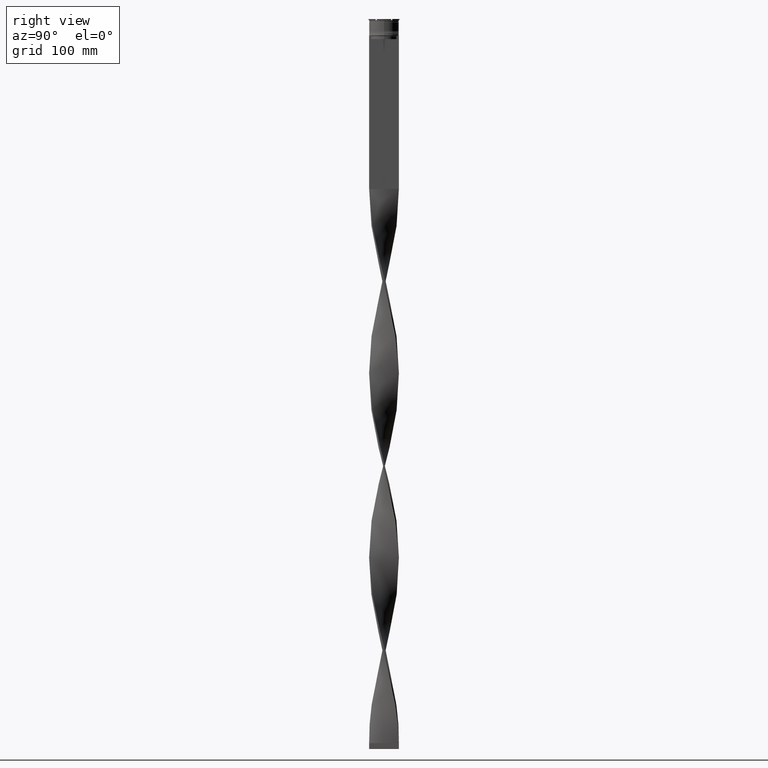
[diagram: clean part render]
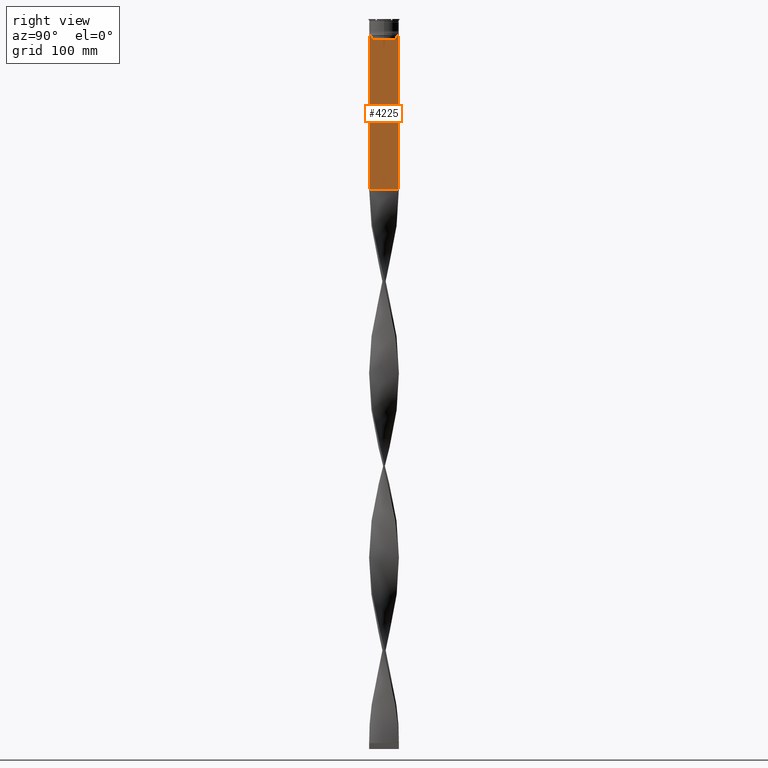
[diagram: same view with one face highlighted and labeled with its STEP entity id]
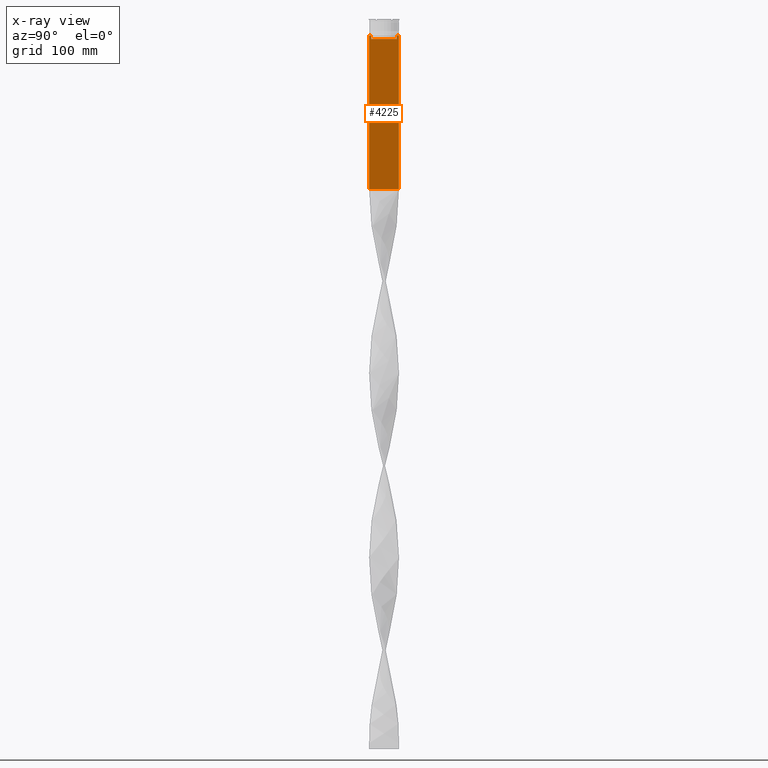
[diagram: x-ray of the same camera — body ghosted, the highlighted face saturated]
A machine part, right view. The second image highlights one B-rep face of the part: STEP entity #4225.
The next image is the same camera in x-ray: the body ghosted, the highlighted face saturated — about 0% of this face is hidden behind the body in this view.
In plain terms, the highlighted planar face has unit normal (-1, 0, 0).
Its self-contained STEP definition (entity closure, byte-faithful):
#17 = CARTESIAN_POINT ( 'NONE',  ( 0.7500000000000002220, -12.50000000000000000, -14.00000000000000178 ) ) ;
#27 = CARTESIAN_POINT ( 'NONE',  ( 0.7500000000000002220, -11.04122051801870441, -14.33334204001847567 ) ) ;
#52 = EDGE_CURVE ( 'NONE', #1727, #3552, #1667, .T. ) ;
#84 = CARTESIAN_POINT ( 'NONE',  ( 0.7500000000000002220, 10.90000000000000213, -17.00000000000000000 ) ) ;
#118 = VERTEX_POINT ( 'NONE', #4719 ) ;
#175 = LINE ( 'NONE', #2805, #4119 ) ;
#238 = B_SPLINE_CURVE_WITH_KNOTS ( 'NONE', 3,
 ( #838, #474, #2354, #884 ),
 .UNSPECIFIED., .F., .F.,
 ( 4, 4 ),
 ( 0.01936090553552769281, 0.02006881572333104116 ),
 .UNSPECIFIED. ) ;
#404 = EDGE_CURVE ( 'NONE', #500, #811, #3399, .T. ) ;
#414 = LINE ( 'NONE', #4509, #2696 ) ;
#421 = CARTESIAN_POINT ( 'NONE',  ( 0.7500000000000002220, -11.37530219378809093, -14.00000000000000178 ) ) ;
#430 = VERTEX_POINT ( 'NONE', #3799 ) ;
#453 = EDGE_CURVE ( 'NONE', #118, #4021, #741, .T. ) ;
#474 = CARTESIAN_POINT ( 'NONE',  ( 0.7500000000000002220, 11.20826531587977648, -14.16667499681701514 ) ) ;
#500 = VERTEX_POINT ( 'NONE', #421 ) ;
#506 = CARTESIAN_POINT ( 'NONE',  ( 0.7500000000000002220, -10.87416663473574197, -14.50000000000000000 ) ) ;
#533 = PLANE ( 'NONE',  #2798 ) ;
#585 = FACE_OUTER_BOUND ( 'NONE', #2381, .T. ) ;
#646 = ORIENTED_EDGE ( 'NONE', *, *, #4085, .T. ) ;
#741 = LINE ( 'NONE', #3755, #1763 ) ;
#811 = VERTEX_POINT ( 'NONE', #2816 ) ;
#838 = CARTESIAN_POINT ( 'NONE',  ( 0.7500000000000002220, 11.37530219378809093, -14.00000000000000178 ) ) ;
#884 = CARTESIAN_POINT ( 'NONE',  ( 0.7500000000000002220, 10.87416663473574197, -14.50000000000000000 ) ) ;
#998 = ORIENTED_EDGE ( 'NONE', *, *, #52, .T. ) ;
#1108 = EDGE_CURVE ( 'NONE', #811, #1637, #414, .T. ) ;
#1131 = EDGE_CURVE ( 'NONE', #3597, #1727, #1814, .T. ) ;
#1166 = DIRECTION ( 'NONE',  ( 0.000000000000000000, -1.000000000000000000, 0.000000000000000000 ) ) ;
#1202 = EDGE_CURVE ( 'NONE', #4261, #3498, #175, .T. ) ;
#1340 = B_SPLINE_CURVE_WITH_KNOTS ( 'NONE', 3,
 ( #2270, #27, #2250, #1527 ),
 .UNSPECIFIED., .F., .F.,
 ( 4, 4 ),
 ( 0.05009718908159448147, 0.05081156920313959630 ),
 .UNSPECIFIED. ) ;
#1403 = CARTESIAN_POINT ( 'NONE',  ( 0.7500000000000002220, -12.50000000000000000, -14.00000000000000178 ) ) ;
#1473 = DIRECTION ( 'NONE',  ( 0.000000000000000000, -1.000000000000000000, 0.000000000000000000 ) ) ;
#1525 = VECTOR ( 'NONE', #1166, 1000.000000000000000 ) ;
#1527 = CARTESIAN_POINT ( 'NONE',  ( 0.7500000000000002220, -11.37530219378809093, -14.00000000000000178 ) ) ;
#1637 = VERTEX_POINT ( 'NONE', #1403 ) ;
#1646 = CARTESIAN_POINT ( 'NONE',  ( 0.7500000000000002220, -12.50000000000000000, -14.00000000000000178 ) ) ;
#1653 = ORIENTED_EDGE ( 'NONE', *, *, #3770, .F. ) ;
#1667 = LINE ( 'NONE', #1646, #3733 ) ;
#1718 = ORIENTED_EDGE ( 'NONE', *, *, #404, .T. ) ;
#1727 = VERTEX_POINT ( 'NONE', #2812 ) ;
#1763 = VECTOR ( 'NONE', #2234, 1000.000000000000000 ) ;
#1781 = VECTOR ( 'NONE', #2453, 1000.000000000000000 ) ;
#1812 = ORIENTED_EDGE ( 'NONE', *, *, #4656, .T. ) ;
#1814 = LINE ( 'NONE', #1900, #1525 ) ;
#1900 = CARTESIAN_POINT ( 'NONE',  ( 0.7500000000000002220, -12.50000000000000000, -14.00000000000000178 ) ) ;
#1919 = ORIENTED_EDGE ( 'NONE', *, *, #3004, .T. ) ;
#2200 = VERTEX_POINT ( 'NONE', #4506 ) ;
#2234 = DIRECTION ( 'NONE',  ( -0.000000000000000000, -0.000000000000000000, 1.000000000000000000 ) ) ;
#2250 = CARTESIAN_POINT ( 'NONE',  ( 0.7500000000000002220, -11.20826532207830439, -14.16667499063191826 ) ) ;
#2270 = CARTESIAN_POINT ( 'NONE',  ( 0.7500000000000002220, -10.87416663473574197, -14.50000000000000000 ) ) ;
#2295 = DIRECTION ( 'NONE',  ( 0.000000000000000000, 0.000000000000000000, -1.000000000000000000 ) ) ;
#2324 = VECTOR ( 'NONE', #2525, 1000.000000000000000 ) ;
#2354 = CARTESIAN_POINT ( 'NONE',  ( 0.7500000000000002220, 11.04122051153452055, -14.33334204648729404 ) ) ;
#2381 = EDGE_LOOP ( 'NONE', ( #998, #2398, #1919, #4293, #3485, #1812, #1718, #4620, #646, #2829, #1653, #3152 ) ) ;
#2398 = ORIENTED_EDGE ( 'NONE', *, *, #2736, .T. ) ;
#2453 = DIRECTION ( 'NONE',  ( 0.000000000000000000, 0.000000000000000000, -1.000000000000000000 ) ) ;
#2525 = DIRECTION ( 'NONE',  ( 0.000000000000000000, 0.000000000000000000, -1.000000000000000000 ) ) ;
#2696 = VECTOR ( 'NONE', #4142, 1000.000000000000000 ) ;
#2736 = EDGE_CURVE ( 'NONE', #3552, #430, #238, .T. ) ;
#2798 = AXIS2_PLACEMENT_3D ( 'NONE', #4339, #4316, #3176 ) ;
#2805 = CARTESIAN_POINT ( 'NONE',  ( 0.7500000000000002220, -12.50000000000000000, -143.0000000000000284 ) ) ;
#2812 = CARTESIAN_POINT ( 'NONE',  ( 0.7500000000000002220, 12.37729776647553059, -14.00000000000000178 ) ) ;
#2816 = CARTESIAN_POINT ( 'NONE',  ( 0.7500000000000002220, -12.37729776647553059, -14.00000000000000178 ) ) ;
#2820 = LINE ( 'NONE', #4325, #1781 ) ;
#2829 = ORIENTED_EDGE ( 'NONE', *, *, #1202, .T. ) ;
#2914 = CARTESIAN_POINT ( 'NONE',  ( 0.7500000000000002220, 12.50000000000000000, 11.04495957273638673 ) ) ;
#2962 = LINE ( 'NONE', #2914, #2324 ) ;
#3004 = EDGE_CURVE ( 'NONE', #430, #2200, #2820, .T. ) ;
#3053 = DIRECTION ( 'NONE',  ( 0.000000000000000000, -1.000000000000000000, 0.000000000000000000 ) ) ;
#3101 = LINE ( 'NONE', #84, #3674 ) ;
#3152 = ORIENTED_EDGE ( 'NONE', *, *, #1131, .T. ) ;
#3176 = DIRECTION ( 'NONE',  ( 0.000000000000000000, 0.000000000000000000, 1.000000000000000000 ) ) ;
#3205 = CARTESIAN_POINT ( 'NONE',  ( 0.7500000000000002220, -12.50000000000000000, -143.0000000000000284 ) ) ;
#3347 = VECTOR ( 'NONE', #2295, 1000.000000000000000 ) ;
#3399 = LINE ( 'NONE', #17, #3880 ) ;
#3461 = DIRECTION ( 'NONE',  ( 0.000000000000000000, -1.000000000000000000, 0.000000000000000000 ) ) ;
#3485 = ORIENTED_EDGE ( 'NONE', *, *, #453, .T. ) ;
#3498 = VERTEX_POINT ( 'NONE', #4013 ) ;
#3532 = CARTESIAN_POINT ( 'NONE',  ( 0.7500000000000002220, 12.50000000000000000, -14.00000000000000178 ) ) ;
#3552 = VERTEX_POINT ( 'NONE', #4392 ) ;
#3597 = VERTEX_POINT ( 'NONE', #3532 ) ;
#3674 = VECTOR ( 'NONE', #3053, 1000.000000000000000 ) ;
#3733 = VECTOR ( 'NONE', #3461, 1000.000000000000000 ) ;
#3755 = CARTESIAN_POINT ( 'NONE',  ( 0.7500000000000002220, -10.87416663473574197, 0.000000000000000000 ) ) ;
#3770 = EDGE_CURVE ( 'NONE', #3597, #3498, #2962, .T. ) ;
#3799 = CARTESIAN_POINT ( 'NONE',  ( 0.7500000000000002220, 10.87416663473574197, -14.50000000000000000 ) ) ;
#3880 = VECTOR ( 'NONE', #1473, 1000.000000000000000 ) ;
#4013 = CARTESIAN_POINT ( 'NONE',  ( 0.7500000000000002220, 12.50000000000000000, -143.0000000000000284 ) ) ;
#4021 = VERTEX_POINT ( 'NONE', #506 ) ;
#4085 = EDGE_CURVE ( 'NONE', #1637, #4261, #4600, .T. ) ;
#4119 = VECTOR ( 'NONE', #4312, 1000.000000000000000 ) ;
#4142 = DIRECTION ( 'NONE',  ( 0.000000000000000000, -1.000000000000000000, 0.000000000000000000 ) ) ;
#4225 = ADVANCED_FACE ( 'NONE', ( #585 ), #533, .F. ) ;
#4261 = VERTEX_POINT ( 'NONE', #3205 ) ;
#4293 = ORIENTED_EDGE ( 'NONE', *, *, #4811, .T. ) ;
#4312 = DIRECTION ( 'NONE',  ( 0.000000000000000000, 1.000000000000000000, 0.000000000000000000 ) ) ;
#4316 = DIRECTION ( 'NONE',  ( -1.000000000000000000, 0.000000000000000000, 0.000000000000000000 ) ) ;
#4325 = CARTESIAN_POINT ( 'NONE',  ( 0.7500000000000002220, 10.87416663473574197, 0.000000000000000000 ) ) ;
#4339 = CARTESIAN_POINT ( 'NONE',  ( 0.7500000000000002220, -12.50000000000000000, 11.04495957273638673 ) ) ;
#4392 = CARTESIAN_POINT ( 'NONE',  ( 0.7500000000000002220, 11.37530219378809093, -14.00000000000000178 ) ) ;
#4506 = CARTESIAN_POINT ( 'NONE',  ( 0.7500000000000002220, 10.87416663473574019, -17.00000000000000000 ) ) ;
#4509 = CARTESIAN_POINT ( 'NONE',  ( 0.7500000000000002220, -12.50000000000000000, -14.00000000000000178 ) ) ;
#4550 = CARTESIAN_POINT ( 'NONE',  ( 0.7500000000000002220, -12.50000000000000000, 11.04495957273638673 ) ) ;
#4600 = LINE ( 'NONE', #4550, #3347 ) ;
#4620 = ORIENTED_EDGE ( 'NONE', *, *, #1108, .T. ) ;
#4656 = EDGE_CURVE ( 'NONE', #4021, #500, #1340, .T. ) ;
#4719 = CARTESIAN_POINT ( 'NONE',  ( 0.7500000000000002220, -10.87416663473574019, -17.00000000000000000 ) ) ;
#4811 = EDGE_CURVE ( 'NONE', #2200, #118, #3101, .T. ) ;